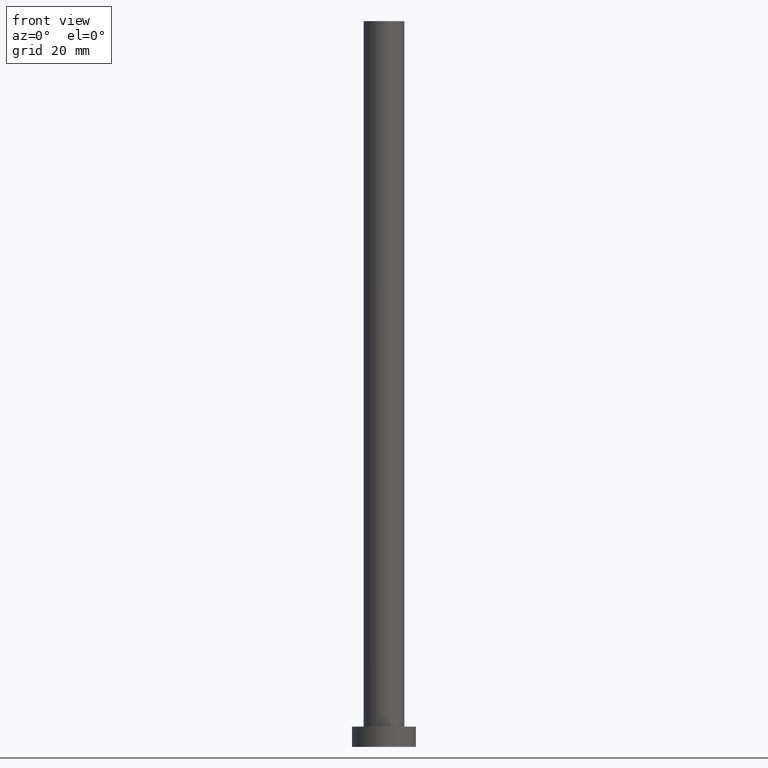
[diagram: clean part render]
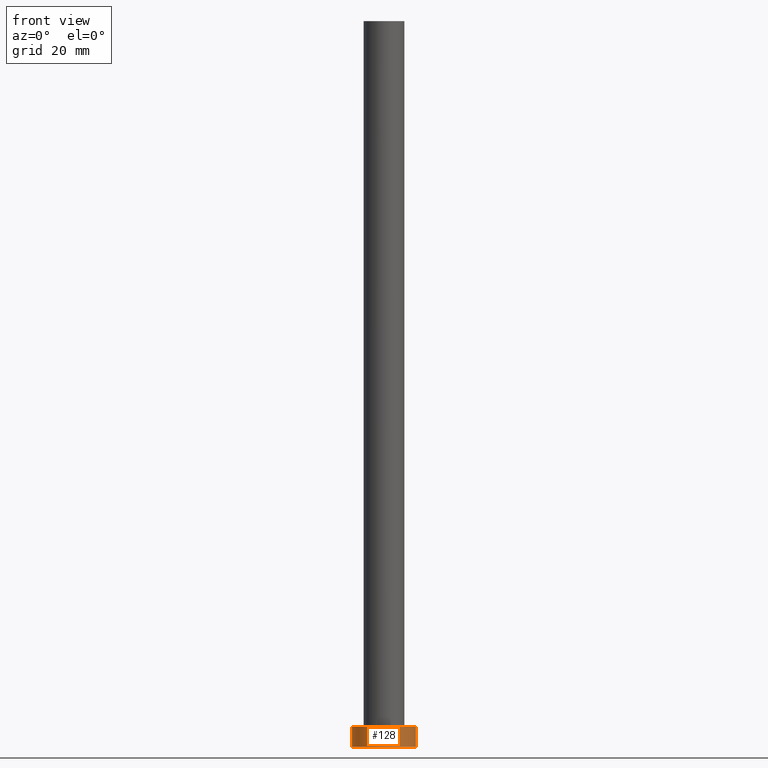
[diagram: same view with one face highlighted and labeled with its STEP entity id]
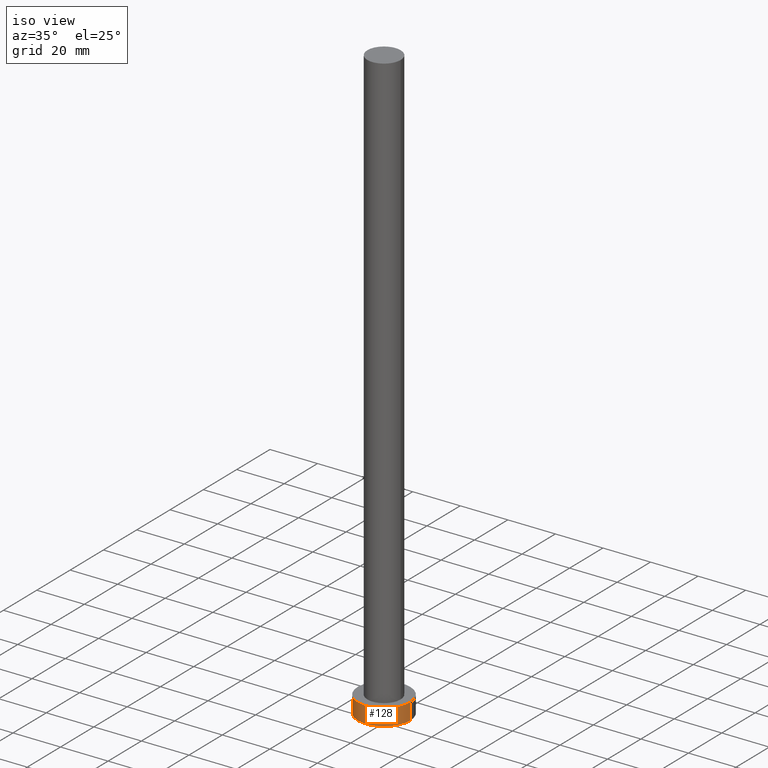
[diagram: same view with one face highlighted and labeled with its STEP entity id]
A machine part, front view. The second image highlights one B-rep face of the part: STEP entity #128.
A second angle (iso view) of the same face is appended — the face is thin or edge-on in the first view.
In plain terms, the highlighted cylindrical surface (edge-blend (fillet) strip) has radius 11 mm, axis along (-0, -0, -1).
Its self-contained STEP definition (entity closure, byte-faithful):
#4 = LINE ( 'NONE', #68, #148 ) ;
#6 = DIRECTION ( 'NONE',  ( -0.000000000000000000, -0.000000000000000000, -1.000000000000000000 ) ) ;
#10 = DIRECTION ( 'NONE',  ( 0.000000000000000000, 0.000000000000000000, 1.000000000000000000 ) ) ;
#13 = CARTESIAN_POINT ( 'NONE',  ( -11.00000000000000000, 0.000000000000000000, 0.000000000000000000 ) ) ;
#15 = DIRECTION ( 'NONE',  ( -0.000000000000000000, -0.000000000000000000, -1.000000000000000000 ) ) ;
#20 = DIRECTION ( 'NONE',  ( -0.000000000000000000, -0.000000000000000000, -1.000000000000000000 ) ) ;
#25 = CARTESIAN_POINT ( 'NONE',  ( 0.000000000000000000, 0.000000000000000000, 7.000000000000000000 ) ) ;
#28 = CARTESIAN_POINT ( 'NONE',  ( -11.00000000000000000, 0.000000000000000000, 7.000000000000000000 ) ) ;
#29 = VERTEX_POINT ( 'NONE', #13 ) ;
#30 = ORIENTED_EDGE ( 'NONE', *, *, #135, .F. ) ;
#40 = DIRECTION ( 'NONE',  ( 0.000000000000000000, 0.000000000000000000, 1.000000000000000000 ) ) ;
#45 = ORIENTED_EDGE ( 'NONE', *, *, #108, .T. ) ;
#61 = VERTEX_POINT ( 'NONE', #250 ) ;
#68 = CARTESIAN_POINT ( 'NONE',  ( 11.00000000000000000, 1.347111479062088405E-15, 7.000000000000000000 ) ) ;
#104 = ORIENTED_EDGE ( 'NONE', *, *, #186, .T. ) ;
#108 = EDGE_CURVE ( 'NONE', #205, #29, #109, .T. ) ;
#109 = LINE ( 'NONE', #232, #157 ) ;
#112 = DIRECTION ( 'NONE',  ( -1.000000000000000000, 0.000000000000000000, 0.000000000000000000 ) ) ;
#123 = AXIS2_PLACEMENT_3D ( 'NONE', #219, #40, #166 ) ;
#125 = DIRECTION ( 'NONE',  ( 1.000000000000000000, 0.000000000000000000, 0.000000000000000000 ) ) ;
#128 = ADVANCED_FACE ( 'NONE', ( #191 ), #200, .T. ) ;
#135 = EDGE_CURVE ( 'NONE', #61, #182, #4, .T. ) ;
#136 = CARTESIAN_POINT ( 'NONE',  ( 11.00000000000000000, 1.347111479062088405E-15, 0.000000000000000000 ) ) ;
#148 = VECTOR ( 'NONE', #6, 1000.000000000000000 ) ;
#157 = VECTOR ( 'NONE', #15, 1000.000000000000000 ) ;
#166 = DIRECTION ( 'NONE',  ( 1.000000000000000000, 0.000000000000000000, 0.000000000000000000 ) ) ;
#174 = AXIS2_PLACEMENT_3D ( 'NONE', #180, #10, #125 ) ;
#179 = EDGE_LOOP ( 'NONE', ( #30, #246, #45, #104 ) ) ;
#180 = CARTESIAN_POINT ( 'NONE',  ( 0.000000000000000000, 0.000000000000000000, 7.000000000000000000 ) ) ;
#182 = VERTEX_POINT ( 'NONE', #136 ) ;
#183 = AXIS2_PLACEMENT_3D ( 'NONE', #25, #20, #112 ) ;
#186 = EDGE_CURVE ( 'NONE', #29, #182, #247, .T. ) ;
#191 = FACE_OUTER_BOUND ( 'NONE', #179, .T. ) ;
#200 = CYLINDRICAL_SURFACE ( 'NONE', #183, 11.00000000000000000 ) ;
#205 = VERTEX_POINT ( 'NONE', #28 ) ;
#217 = EDGE_CURVE ( 'NONE', #205, #61, #235, .T. ) ;
#219 = CARTESIAN_POINT ( 'NONE',  ( 0.000000000000000000, 0.000000000000000000, 0.000000000000000000 ) ) ;
#232 = CARTESIAN_POINT ( 'NONE',  ( -11.00000000000000000, 0.000000000000000000, 7.000000000000000000 ) ) ;
#235 = CIRCLE ( 'NONE', #174, 11.00000000000000000 ) ;
#246 = ORIENTED_EDGE ( 'NONE', *, *, #217, .F. ) ;
#247 = CIRCLE ( 'NONE', #123, 11.00000000000000000 ) ;
#250 = CARTESIAN_POINT ( 'NONE',  ( 11.00000000000000000, 1.347111479062088405E-15, 7.000000000000000000 ) ) ;